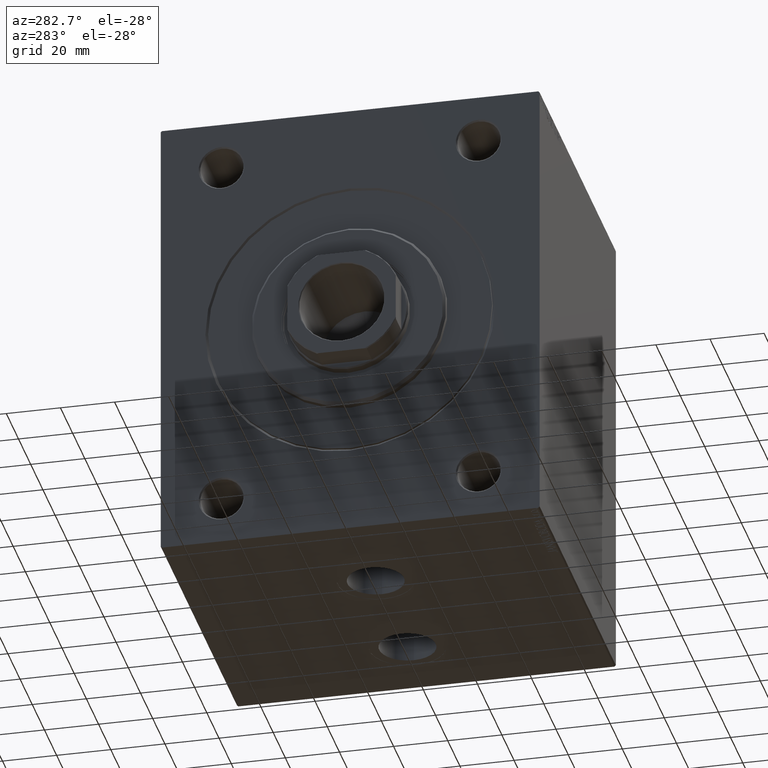
[diagram: clean part render]
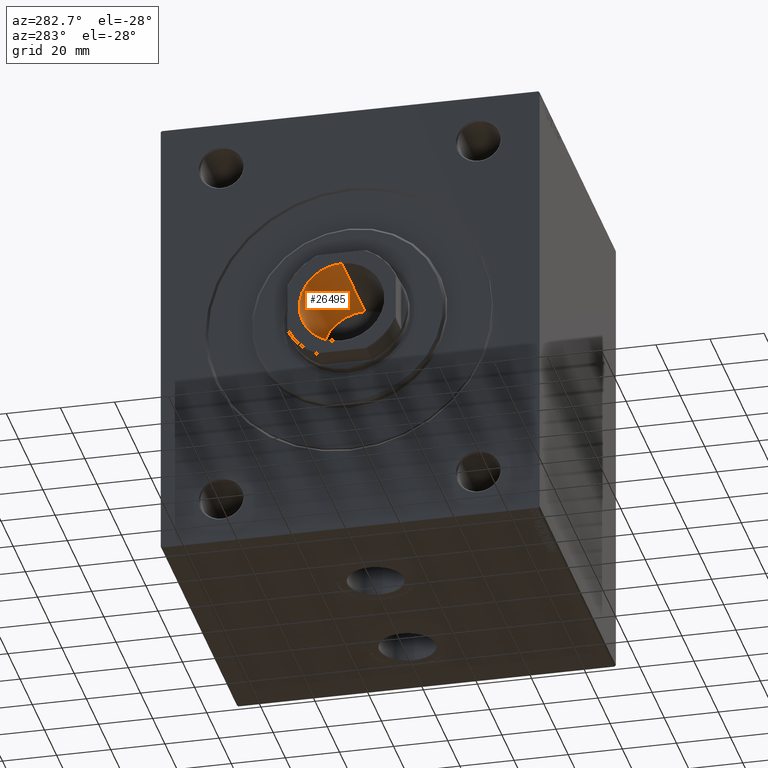
[diagram: same view with one face highlighted and labeled with its STEP entity id]
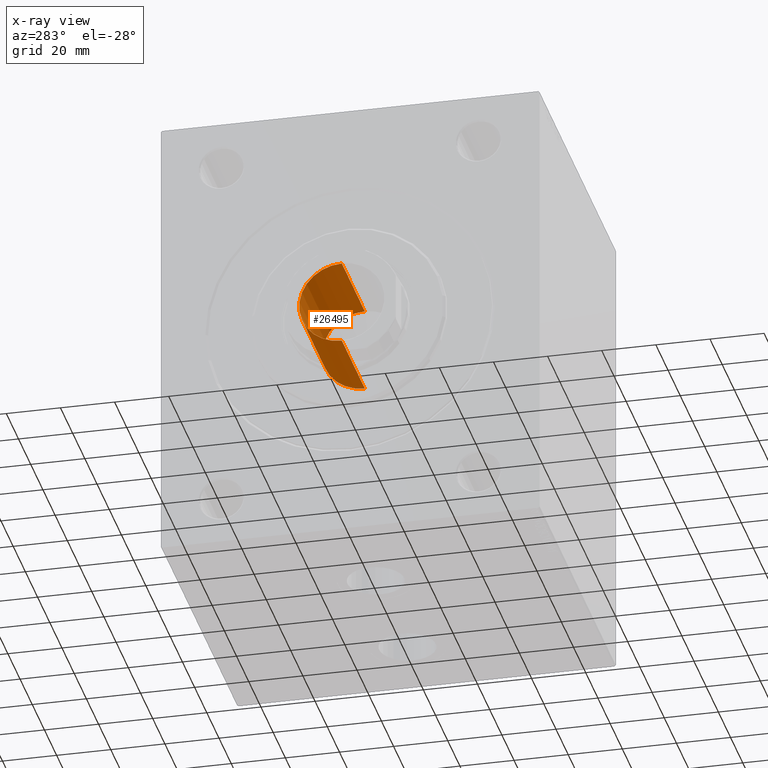
[diagram: x-ray of the same camera — body ghosted, the highlighted face saturated]
A machine part, auxiliary view. The second image highlights one B-rep face of the part: STEP entity #26495.
The next image is the same camera in x-ray: the body ghosted, the highlighted face saturated — about 1% of this face is hidden behind the body in this view.
In plain terms, the highlighted cylindrical surface (partial cylindrical patch) has radius 15.75 mm, axis along (-1, 0, 0).
Its self-contained STEP definition (entity closure, byte-faithful):
#516 = DIRECTION ( 'NONE',  ( 1.000000000000000000, 0.000000000000000000, 0.000000000000000000 ) ) ;
#1619 = EDGE_CURVE ( 'NONE', #27295, #13794, #39802, .T. ) ;
#2385 = ORIENTED_EDGE ( 'NONE', *, *, #29999, .F. ) ;
#4800 = CARTESIAN_POINT ( 'NONE',  ( -15.74999999999999289, 1.928818708657080556E-15, 26.99999999999998934 ) ) ;
#6580 = CARTESIAN_POINT ( 'NONE',  ( 15.74999999999999289, 0.000000000000000000, 26.99999999999998934 ) ) ;
#7184 = LINE ( 'NONE', #17776, #18067 ) ;
#10859 = DIRECTION ( 'NONE',  ( -0.000000000000000000, -0.000000000000000000, 1.000000000000000000 ) ) ;
#12432 = VECTOR ( 'NONE', #36112, 1000.000000000000000 ) ;
#13794 = VERTEX_POINT ( 'NONE', #40279 ) ;
#14893 = VERTEX_POINT ( 'NONE', #4800 ) ;
#16953 = CIRCLE ( 'NONE', #23564, 15.74999999999999289 ) ;
#17605 = EDGE_CURVE ( 'NONE', #14893, #44444, #7184, .T. ) ;
#17776 = CARTESIAN_POINT ( 'NONE',  ( -15.74999999999999289, 1.928818708657080556E-15, 64.99999999999998579 ) ) ;
#17864 = CARTESIAN_POINT ( 'NONE',  ( 0.000000000000000000, 0.000000000000000000, 64.70000000000000284 ) ) ;
#18067 = VECTOR ( 'NONE', #10859, 1000.000000000000000 ) ;
#19250 = DIRECTION ( 'NONE',  ( 1.000000000000000000, 0.000000000000000000, 0.000000000000000000 ) ) ;
#20573 = ORIENTED_EDGE ( 'NONE', *, *, #17605, .F. ) ;
#22699 = DIRECTION ( 'NONE',  ( -0.000000000000000000, -0.000000000000000000, 1.000000000000000000 ) ) ;
#22829 = CARTESIAN_POINT ( 'NONE',  ( -15.74999999999999289, 1.928818708657080556E-15, 64.70000000000000284 ) ) ;
#23564 = AXIS2_PLACEMENT_3D ( 'NONE', #43625, #22699, #19250 ) ;
#24774 = DIRECTION ( 'NONE',  ( 0.000000000000000000, 0.000000000000000000, 1.000000000000000000 ) ) ;
#25133 = CARTESIAN_POINT ( 'NONE',  ( 0.000000000000000000, 0.000000000000000000, 64.99999999999998579 ) ) ;
#25583 = CYLINDRICAL_SURFACE ( 'NONE', #29336, 15.74999999999999289 ) ;
#26495 = ADVANCED_FACE ( 'NONE', ( #39393 ), #25583, .F. ) ;
#27295 = VERTEX_POINT ( 'NONE', #6580 ) ;
#29336 = AXIS2_PLACEMENT_3D ( 'NONE', #25133, #42610, #516 ) ;
#29999 = EDGE_CURVE ( 'NONE', #27295, #14893, #16953, .T. ) ;
#36112 = DIRECTION ( 'NONE',  ( -0.000000000000000000, -0.000000000000000000, 1.000000000000000000 ) ) ;
#37072 = CIRCLE ( 'NONE', #43695, 15.74999999999999289 ) ;
#37834 = EDGE_CURVE ( 'NONE', #13794, #44444, #37072, .T. ) ;
#37911 = ORIENTED_EDGE ( 'NONE', *, *, #37834, .T. ) ;
#39393 = FACE_OUTER_BOUND ( 'NONE', #42810, .T. ) ;
#39438 = ORIENTED_EDGE ( 'NONE', *, *, #1619, .T. ) ;
#39802 = LINE ( 'NONE', #43244, #12432 ) ;
#40279 = CARTESIAN_POINT ( 'NONE',  ( 15.74999999999999289, 0.000000000000000000, 64.70000000000000284 ) ) ;
#42026 = DIRECTION ( 'NONE',  ( 1.000000000000000000, 0.000000000000000000, 0.000000000000000000 ) ) ;
#42610 = DIRECTION ( 'NONE',  ( -0.000000000000000000, -0.000000000000000000, 1.000000000000000000 ) ) ;
#42810 = EDGE_LOOP ( 'NONE', ( #20573, #2385, #39438, #37911 ) ) ;
#43244 = CARTESIAN_POINT ( 'NONE',  ( 15.74999999999999289, 0.000000000000000000, 64.99999999999998579 ) ) ;
#43625 = CARTESIAN_POINT ( 'NONE',  ( 0.000000000000000000, 0.000000000000000000, 26.99999999999998934 ) ) ;
#43695 = AXIS2_PLACEMENT_3D ( 'NONE', #17864, #24774, #42026 ) ;
#44444 = VERTEX_POINT ( 'NONE', #22829 ) ;